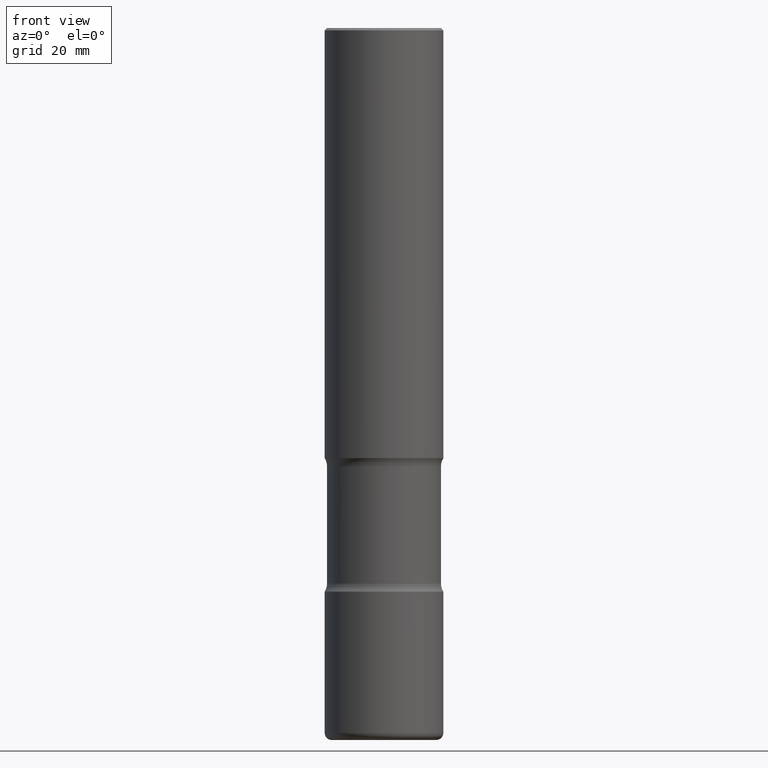
[diagram: clean part render]
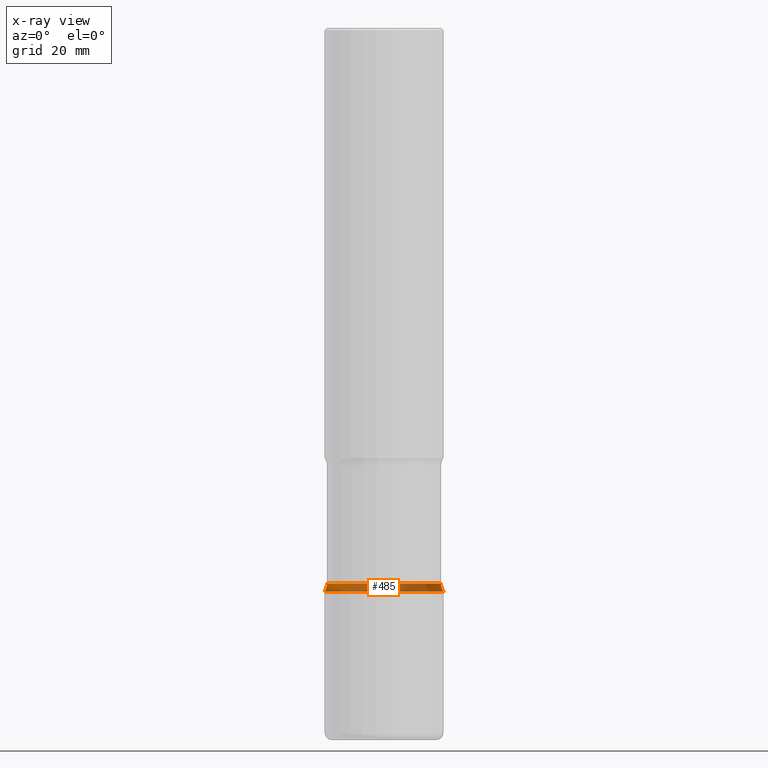
[diagram: x-ray — body ghosted, one internal face saturated and labeled with its STEP entity id]
A machine part, front view, then the same camera in x-ray: the body is ghosted and one INTERNAL B-rep face — a face not visible from any outside direction — is saturated and labeled: STEP entity #485.
In plain terms, the highlighted toroidal blend (fillet) surface has major radius 15.367 mm and minor (blend) radius 3.175 mm.
Its self-contained STEP definition (entity closure, byte-faithful):
#8 = AXIS2_PLACEMENT_3D ( 'NONE', #536, #666, #166 ) ;
#14 = ORIENTED_EDGE ( 'NONE', *, *, #598, .F. ) ;
#22 = CARTESIAN_POINT ( 'NONE',  ( -0.4799999999999999267, -1.299591048851595473E-14, -4.682176700168747985 ) ) ;
#35 = ORIENTED_EDGE ( 'NONE', *, *, #533, .T. ) ;
#45 = CARTESIAN_POINT ( 'NONE',  ( -0.6049999999999999822, -1.212304015380516982E-14, -4.682176700168747985 ) ) ;
#56 = CIRCLE ( 'NONE', #347, 0.1250000000000000278 ) ;
#155 = CIRCLE ( 'NONE', #8, 0.4799999999999999267 ) ;
#165 = AXIS2_PLACEMENT_3D ( 'NONE', #479, #283, #542 ) ;
#166 = DIRECTION ( 'NONE',  ( -1.000000000000000000, 6.982962677686265133E-15, 0.000000000000000000 ) ) ;
#180 = AXIS2_PLACEMENT_3D ( 'NONE', #701, #391, #576 ) ;
#189 = EDGE_CURVE ( 'NONE', #426, #352, #343, .T. ) ;
#198 = ORIENTED_EDGE ( 'NONE', *, *, #394, .T. ) ;
#244 = TOROIDAL_SURFACE ( 'NONE', #180, 0.6049999999999999822, 0.1250000000000000278 ) ;
#283 = DIRECTION ( 'NONE',  ( 2.445468806185136597E-29, -3.491481338843145583E-15, -1.000000000000000000 ) ) ;
#294 = DIRECTION ( 'NONE',  ( 1.000000000000000000, -6.982962677686261189E-15, 0.000000000000000000 ) ) ;
#298 = CARTESIAN_POINT ( 'NONE',  ( 0.4799999999999999267, -1.982777848556320013E-14, -4.682176700168747985 ) ) ;
#343 = CIRCLE ( 'NONE', #804, 0.1250000000000000278 ) ;
#347 = AXIS2_PLACEMENT_3D ( 'NONE', #45, #746, #294 ) ;
#352 = VERTEX_POINT ( 'NONE', #298 ) ;
#366 = VERTEX_POINT ( 'NONE', #606 ) ;
#383 = CIRCLE ( 'NONE', #165, 0.5000000000000000000 ) ;
#391 = DIRECTION ( 'NONE',  ( 2.445468806185136597E-29, -3.491481338843145583E-15, -1.000000000000000000 ) ) ;
#394 = EDGE_CURVE ( 'NONE', #366, #785, #56, .T. ) ;
#426 = VERTEX_POINT ( 'NONE', #794 ) ;
#431 = DIRECTION ( 'NONE',  ( 6.860497997771531562E-15, 1.000000000000000000, -3.491481338843145583E-15 ) ) ;
#479 = CARTESIAN_POINT ( 'NONE',  ( 1.161597682937940108E-28, -1.658453635950494339E-14, -4.750000000000000000 ) ) ;
#485 = ADVANCED_FACE ( 'NONE', ( #610 ), #244, .F. ) ;
#533 = EDGE_CURVE ( 'NONE', #785, #352, #155, .T. ) ;
#536 = CARTESIAN_POINT ( 'NONE',  ( 1.145011706530952997E-28, -1.634773257380536149E-14, -4.682176700168747985 ) ) ;
#542 = DIRECTION ( 'NONE',  ( -1.000000000000000000, 6.982962677686266711E-15, 0.000000000000000000 ) ) ;
#576 = DIRECTION ( 'NONE',  ( -1.000000000000000000, 6.982962677686266711E-15, -4.883557194083112901E-29 ) ) ;
#598 = EDGE_CURVE ( 'NONE', #366, #426, #383, .T. ) ;
#606 = CARTESIAN_POINT ( 'NONE',  ( -0.5000000000000000000, -1.309305502066180846E-14, -4.750000000000000000 ) ) ;
#610 = FACE_OUTER_BOUND ( 'NONE', #690, .T. ) ;
#627 = DIRECTION ( 'NONE',  ( -1.000000000000000000, 6.860497997771528407E-15, 0.000000000000000000 ) ) ;
#666 = DIRECTION ( 'NONE',  ( 2.445468806185136597E-29, -3.491481338843145583E-15, -1.000000000000000000 ) ) ;
#690 = EDGE_LOOP ( 'NONE', ( #805, #14, #198, #35 ) ) ;
#701 = CARTESIAN_POINT ( 'NONE',  ( 1.145011706530952997E-28, -1.634773257380536149E-14, -4.682176700168747985 ) ) ;
#746 = DIRECTION ( 'NONE',  ( -6.982962677686266711E-15, -1.000000000000000000, 3.491481338843145583E-15 ) ) ;
#747 = CARTESIAN_POINT ( 'NONE',  ( 0.6049999999999999822, -2.049833386245713884E-14, -4.682176700168747985 ) ) ;
#785 = VERTEX_POINT ( 'NONE', #22 ) ;
#794 = CARTESIAN_POINT ( 'NONE',  ( 0.5000000000000000000, -2.001478535839070917E-14, -4.750000000000000000 ) ) ;
#804 = AXIS2_PLACEMENT_3D ( 'NONE', #747, #431, #627 ) ;
#805 = ORIENTED_EDGE ( 'NONE', *, *, #189, .F. ) ;